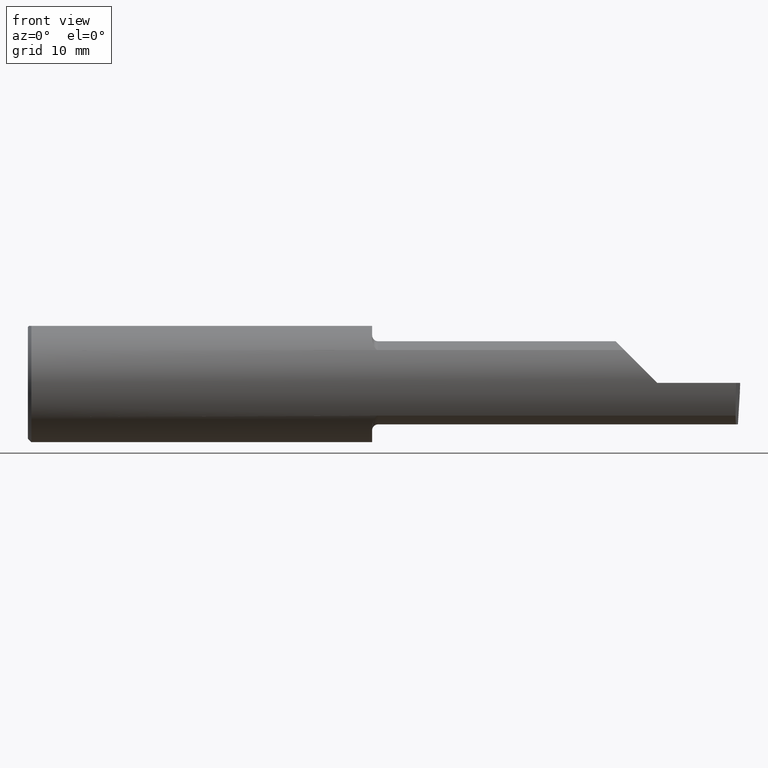
[diagram: clean part render]
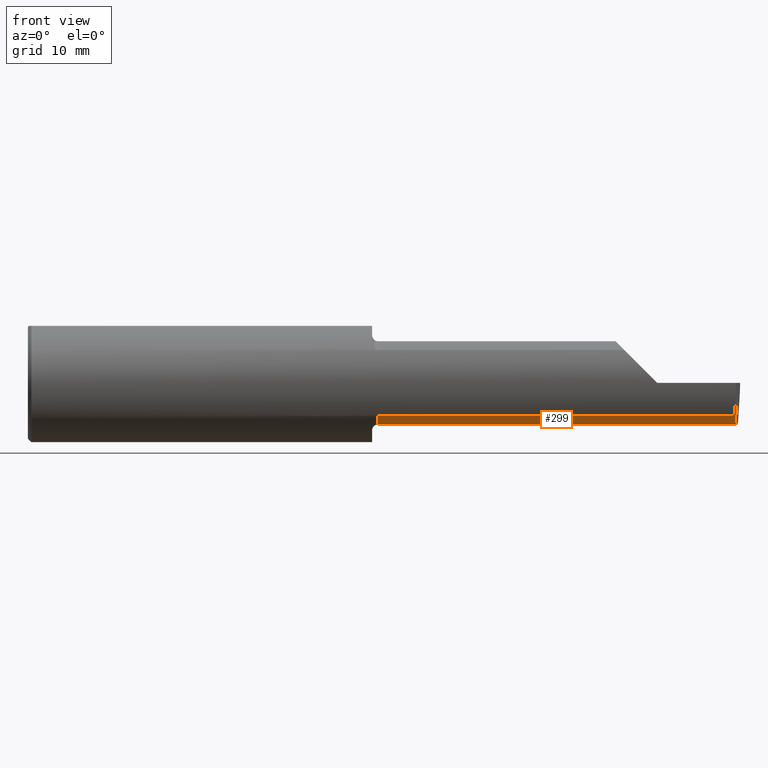
[diagram: same view with one face highlighted and labeled with its STEP entity id]
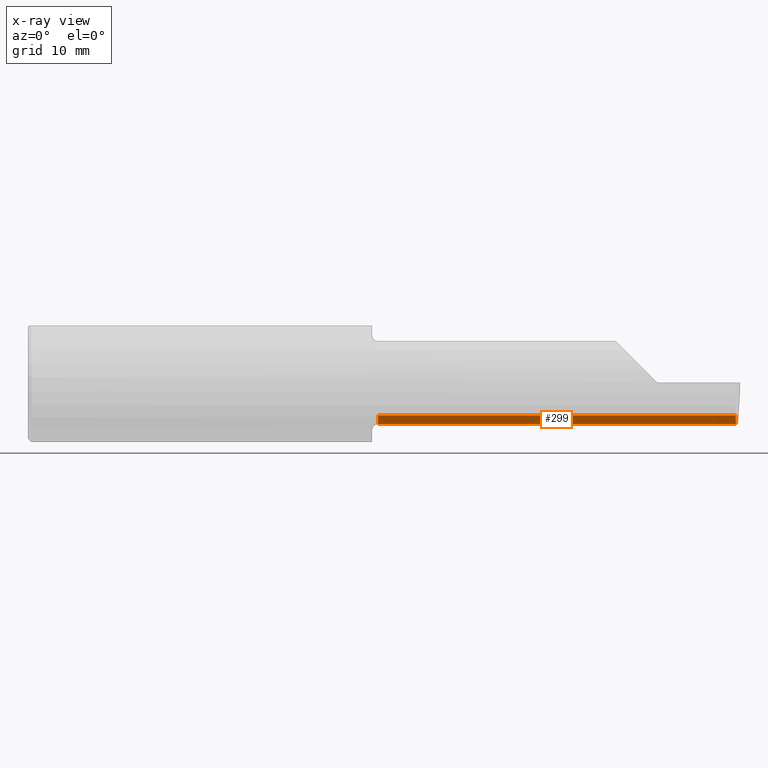
[diagram: x-ray of the same camera — body ghosted, the highlighted face saturated]
A machine part, front view. The second image highlights one B-rep face of the part: STEP entity #299.
The next image is the same camera in x-ray: the body ghosted, the highlighted face saturated — about 0% of this face is hidden behind the body in this view.
In plain terms, the highlighted cylindrical surface (partial cylindrical patch) has radius 4.445 mm, axis along (-1, -0, -0).
Its self-contained STEP definition (entity closure, byte-faithful):
#42 = CARTESIAN_POINT ( 'NONE',  ( 2.174500000000000099, -0.2080850024789291652, -0.1382955322609665250 ) ) ;
#65 = CARTESIAN_POINT ( 'NONE',  ( 2.980479240051444378, -0.2080850024789291652, -0.1382955322609665250 ) ) ;
#73 = EDGE_CURVE ( 'NONE', #150, #333, #114, .T. ) ;
#86 = VERTEX_POINT ( 'NONE', #65 ) ;
#89 = EDGE_LOOP ( 'NONE', ( #776, #264, #634, #311, #155 ) ) ;
#114 = LINE ( 'NONE', #613, #578 ) ;
#135 = CARTESIAN_POINT ( 'NONE',  ( 3.000000000000000444, -0.1008499999999999813, -0.1749999999999999889 ) ) ;
#150 = VERTEX_POINT ( 'NONE', #217 ) ;
#153 = VERTEX_POINT ( 'NONE', #702 ) ;
#155 = ORIENTED_EDGE ( 'NONE', *, *, #652, .F. ) ;
#217 = CARTESIAN_POINT ( 'NONE',  ( 2.885029432995152465, -0.1008500000000000091, -0.1749999999999999889 ) ) ;
#226 = CARTESIAN_POINT ( 'NONE',  ( 1.450000000000000178, -0.1008499999999999674, 0.000000000000000000 ) ) ;
#228 = EDGE_CURVE ( 'NONE', #153, #150, #680, .T. ) ;
#264 = ORIENTED_EDGE ( 'NONE', *, *, #228, .F. ) ;
#279 = DIRECTION ( 'NONE',  ( -1.000000000000000000, -0.000000000000000000, -0.000000000000000000 ) ) ;
#287 = DIRECTION ( 'NONE',  ( -1.000000000000000000, -0.000000000000000000, -0.000000000000000000 ) ) ;
#298 = CARTESIAN_POINT ( 'NONE',  ( 1.474999999999999867, -0.1008499999999999536, -0.1749999999999999889 ) ) ;
#299 = ADVANCED_FACE ( 'NONE', ( #477 ), #468, .T. ) ;
#303 = CIRCLE ( 'NONE', #444, 0.1749999999999999889 ) ;
#311 = ORIENTED_EDGE ( 'NONE', *, *, #614, .T. ) ;
#320 = LINE ( 'NONE', #42, #480 ) ;
#333 = VERTEX_POINT ( 'NONE', #298 ) ;
#348 = CARTESIAN_POINT ( 'NONE',  ( 2.980931506555613453, -0.1771157075472509779, -0.1623092683844330475 ) ) ;
#399 = CARTESIAN_POINT ( 'NONE',  ( 1.474999999999999867, -0.1008499999999999674, 0.000000000000000000 ) ) ;
#403 = CARTESIAN_POINT ( 'NONE',  ( 2.980479240051444378, -0.2080850024789291652, -0.1382955322609665250 ) ) ;
#426 =( BOUNDED_CURVE ( )  B_SPLINE_CURVE ( 3, ( #403, #348, #461, #464 ),
 .UNSPECIFIED., .F., .T. ) 
 B_SPLINE_CURVE_WITH_KNOTS ( ( 4, 4 ),
 ( 0.2675252011803429530, 0.9270880441442505004 ),
 .UNSPECIFIED. ) 
 CURVE ( )  GEOMETRIC_REPRESENTATION_ITEM ( )  RATIONAL_B_SPLINE_CURVE ( ( 1.000000000000000000, 0.9640754331822828371, 0.9640754331822828371, 1.000000000000000000 ) ) 
 REPRESENTATION_ITEM ( '' )  );
#444 = AXIS2_PLACEMENT_3D ( 'NONE', #399, #279, #769 ) ;
#461 = CARTESIAN_POINT ( 'NONE',  ( 2.981893741990786495, -0.1400387324517231025, -0.1750000000000000167 ) ) ;
#464 = CARTESIAN_POINT ( 'NONE',  ( 2.983262242683407006, -0.1008499999999999674, -0.1749999999999999889 ) ) ;
#468 = CYLINDRICAL_SURFACE ( 'NONE', #615, 0.1749999999999999889 ) ;
#477 = FACE_OUTER_BOUND ( 'NONE', #89, .T. ) ;
#480 = VECTOR ( 'NONE', #287, 39.37007874015748143 ) ;
#490 = VECTOR ( 'NONE', #561, 39.37007874015748143 ) ;
#531 = CARTESIAN_POINT ( 'NONE',  ( 1.474999999999999867, -0.2080850024789291375, -0.1382955322609665805 ) ) ;
#540 = DIRECTION ( 'NONE',  ( -1.000000000000000000, -0.000000000000000000, -0.000000000000000000 ) ) ;
#561 = DIRECTION ( 'NONE',  ( -1.000000000000000000, -0.000000000000000000, -0.000000000000000000 ) ) ;
#578 = VECTOR ( 'NONE', #674, 39.37007874015748143 ) ;
#613 = CARTESIAN_POINT ( 'NONE',  ( 1.450000000000000178, -0.1008499999999999536, -0.1749999999999999889 ) ) ;
#614 = EDGE_CURVE ( 'NONE', #86, #682, #320, .T. ) ;
#615 = AXIS2_PLACEMENT_3D ( 'NONE', #226, #540, #720 ) ;
#632 = EDGE_CURVE ( 'NONE', #86, #153, #426, .T. ) ;
#634 = ORIENTED_EDGE ( 'NONE', *, *, #632, .F. ) ;
#652 = EDGE_CURVE ( 'NONE', #333, #682, #303, .T. ) ;
#674 = DIRECTION ( 'NONE',  ( -1.000000000000000000, -0.000000000000000000, -0.000000000000000000 ) ) ;
#680 = LINE ( 'NONE', #135, #490 ) ;
#682 = VERTEX_POINT ( 'NONE', #531 ) ;
#702 = CARTESIAN_POINT ( 'NONE',  ( 2.983262242683407006, -0.1008499999999999674, -0.1749999999999999889 ) ) ;
#720 = DIRECTION ( 'NONE',  ( 0.000000000000000000, 0.000000000000000000, 1.000000000000000000 ) ) ;
#769 = DIRECTION ( 'NONE',  ( 0.000000000000000000, 0.000000000000000000, 1.000000000000000000 ) ) ;
#776 = ORIENTED_EDGE ( 'NONE', *, *, #73, .F. ) ;